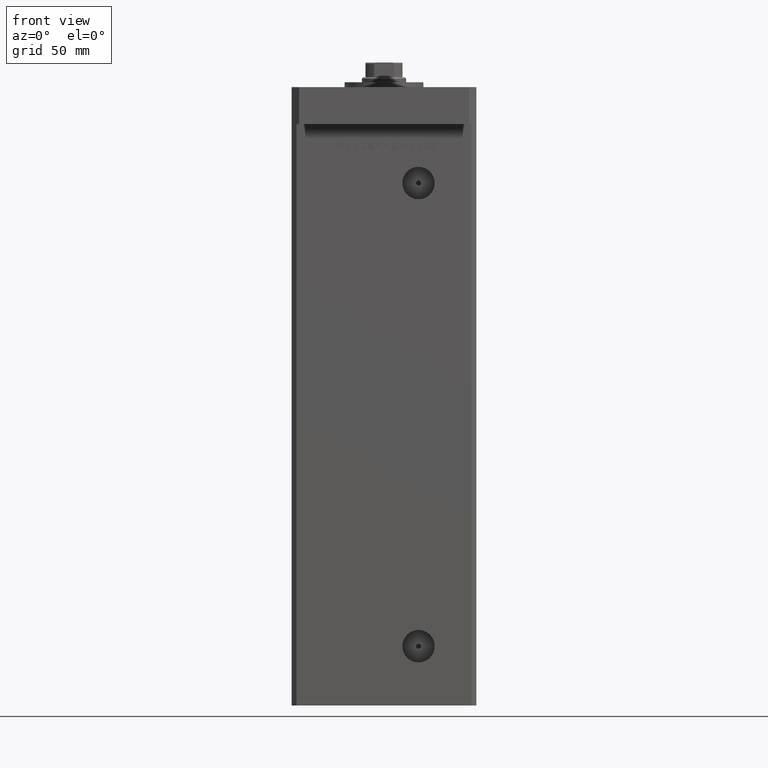
[diagram: clean part render]
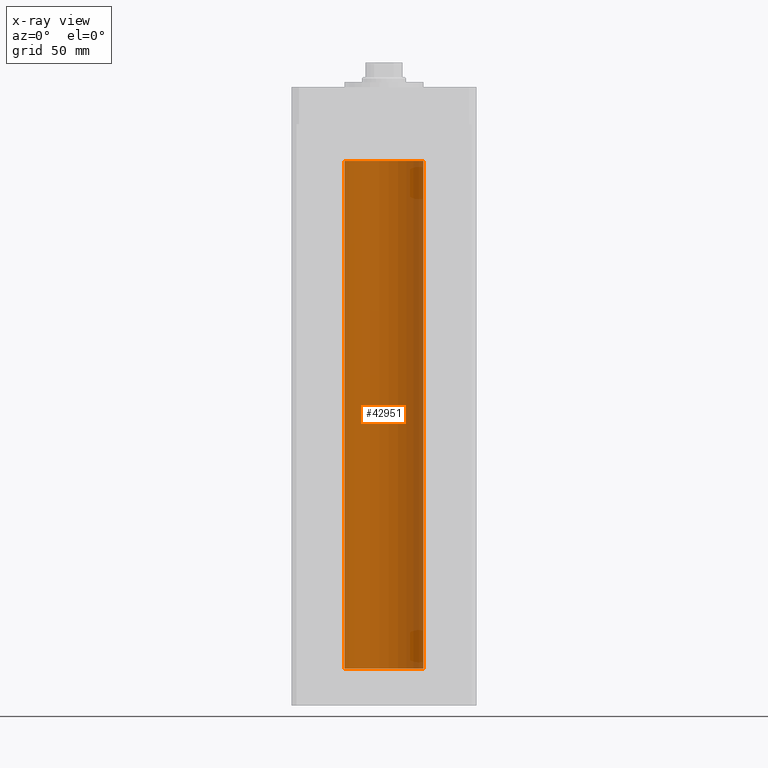
[diagram: x-ray — body ghosted, one internal face saturated and labeled with its STEP entity id]
A machine part, front view, then the same camera in x-ray: the body is ghosted and one INTERNAL B-rep face — a face not visible from any outside direction — is saturated and labeled: STEP entity #42951.
In plain terms, the highlighted cylindrical surface (partial cylindrical patch) has radius 16 mm, axis along (-0, -0, -1).
Its self-contained STEP definition (entity closure, byte-faithful):
#726 = DIRECTION ( 'NONE',  ( -1.000000000000000000, 0.000000000000000000, 0.000000000000000000 ) ) ;
#1374 = CIRCLE ( 'NONE', #18666, 16.00000000000000000 ) ;
#1529 = VECTOR ( 'NONE', #3401, 1000.000000000000000 ) ;
#3138 = CARTESIAN_POINT ( 'NONE',  ( 16.00000000000000000, 1.959434878635765131E-15, 206.0000000000000000 ) ) ;
#3401 = DIRECTION ( 'NONE',  ( -0.000000000000000000, -0.000000000000000000, -1.000000000000000000 ) ) ;
#3541 = CARTESIAN_POINT ( 'NONE',  ( -16.00000000000000000, 0.000000000000000000, 206.0000000000000000 ) ) ;
#4171 = VERTEX_POINT ( 'NONE', #51621 ) ;
#8607 = EDGE_LOOP ( 'NONE', ( #42773, #44081, #33806, #43305 ) ) ;
#8738 = CARTESIAN_POINT ( 'NONE',  ( 0.000000000000000000, 0.000000000000000000, 206.0000000000000000 ) ) ;
#8847 = DIRECTION ( 'NONE',  ( -0.000000000000000000, -0.000000000000000000, -1.000000000000000000 ) ) ;
#10456 = CARTESIAN_POINT ( 'NONE',  ( -16.00000000000000000, 0.000000000000000000, 0.000000000000000000 ) ) ;
#10884 = DIRECTION ( 'NONE',  ( -0.000000000000000000, -0.000000000000000000, -1.000000000000000000 ) ) ;
#14406 = CARTESIAN_POINT ( 'NONE',  ( -16.00000000000000000, 0.000000000000000000, 206.0000000000000000 ) ) ;
#18666 = AXIS2_PLACEMENT_3D ( 'NONE', #8738, #20928, #37747 ) ;
#19629 = VERTEX_POINT ( 'NONE', #10456 ) ;
#20768 = CYLINDRICAL_SURFACE ( 'NONE', #49962, 16.00000000000000000 ) ;
#20928 = DIRECTION ( 'NONE',  ( -0.000000000000000000, 0.000000000000000000, 1.000000000000000000 ) ) ;
#22961 = VECTOR ( 'NONE', #10884, 1000.000000000000000 ) ;
#23464 = LINE ( 'NONE', #3138, #1529 ) ;
#26130 = VERTEX_POINT ( 'NONE', #3541 ) ;
#26440 = DIRECTION ( 'NONE',  ( 1.000000000000000000, 0.000000000000000000, 0.000000000000000000 ) ) ;
#27946 = EDGE_CURVE ( 'NONE', #26130, #19629, #39630, .T. ) ;
#29723 = FACE_OUTER_BOUND ( 'NONE', #8607, .T. ) ;
#30573 = EDGE_CURVE ( 'NONE', #4171, #26130, #1374, .T. ) ;
#33806 = ORIENTED_EDGE ( 'NONE', *, *, #27946, .T. ) ;
#36040 = AXIS2_PLACEMENT_3D ( 'NONE', #38638, #51120, #26440 ) ;
#37588 = CARTESIAN_POINT ( 'NONE',  ( 0.000000000000000000, 0.000000000000000000, 206.0000000000000000 ) ) ;
#37747 = DIRECTION ( 'NONE',  ( 1.000000000000000000, 0.000000000000000000, 0.000000000000000000 ) ) ;
#37785 = CIRCLE ( 'NONE', #36040, 16.00000000000000000 ) ;
#38638 = CARTESIAN_POINT ( 'NONE',  ( 0.000000000000000000, 0.000000000000000000, 0.000000000000000000 ) ) ;
#39630 = LINE ( 'NONE', #14406, #22961 ) ;
#41705 = EDGE_CURVE ( 'NONE', #49589, #19629, #37785, .T. ) ;
#42773 = ORIENTED_EDGE ( 'NONE', *, *, #43989, .F. ) ;
#42951 = ADVANCED_FACE ( 'NONE', ( #29723 ), #20768, .F. ) ;
#43305 = ORIENTED_EDGE ( 'NONE', *, *, #41705, .F. ) ;
#43989 = EDGE_CURVE ( 'NONE', #4171, #49589, #23464, .T. ) ;
#44081 = ORIENTED_EDGE ( 'NONE', *, *, #30573, .T. ) ;
#49589 = VERTEX_POINT ( 'NONE', #52954 ) ;
#49962 = AXIS2_PLACEMENT_3D ( 'NONE', #37588, #8847, #726 ) ;
#51120 = DIRECTION ( 'NONE',  ( -0.000000000000000000, 0.000000000000000000, 1.000000000000000000 ) ) ;
#51621 = CARTESIAN_POINT ( 'NONE',  ( 16.00000000000000000, 1.959434878635765131E-15, 206.0000000000000000 ) ) ;
#52954 = CARTESIAN_POINT ( 'NONE',  ( 16.00000000000000000, 1.959434878635765131E-15, 0.000000000000000000 ) ) ;